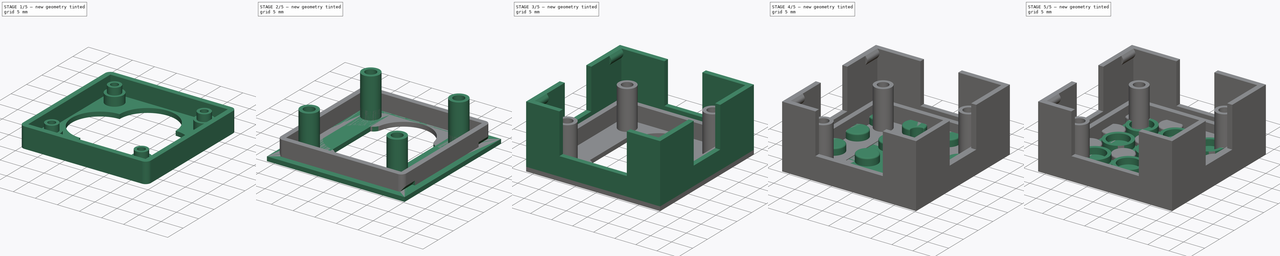
[diagram: build sequence overview — one tinted view per stage of 5, left to right]
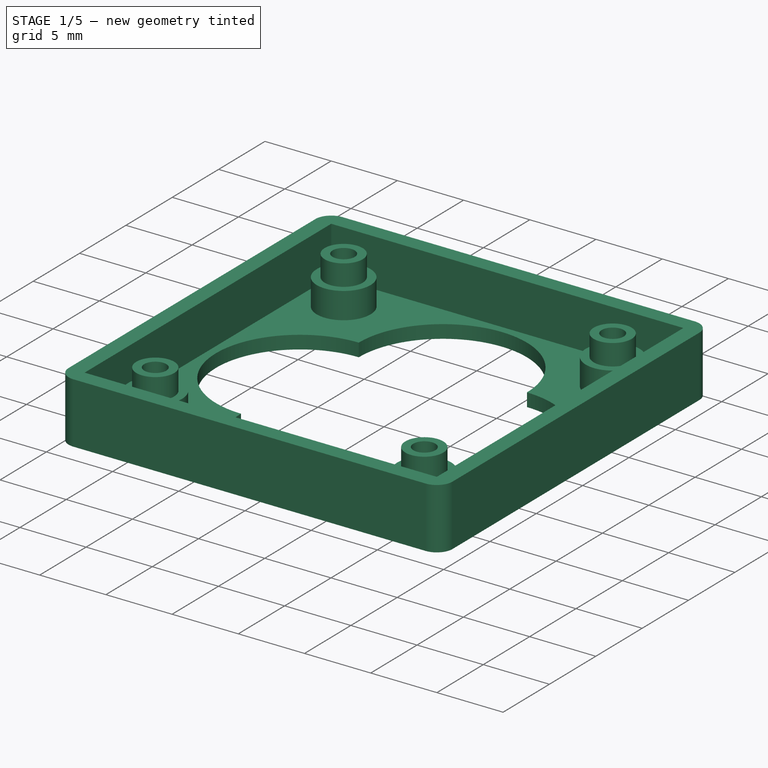
[diagram: stage 1 of 5 — iso view after this stage's code; geometry added in this stage tinted green]
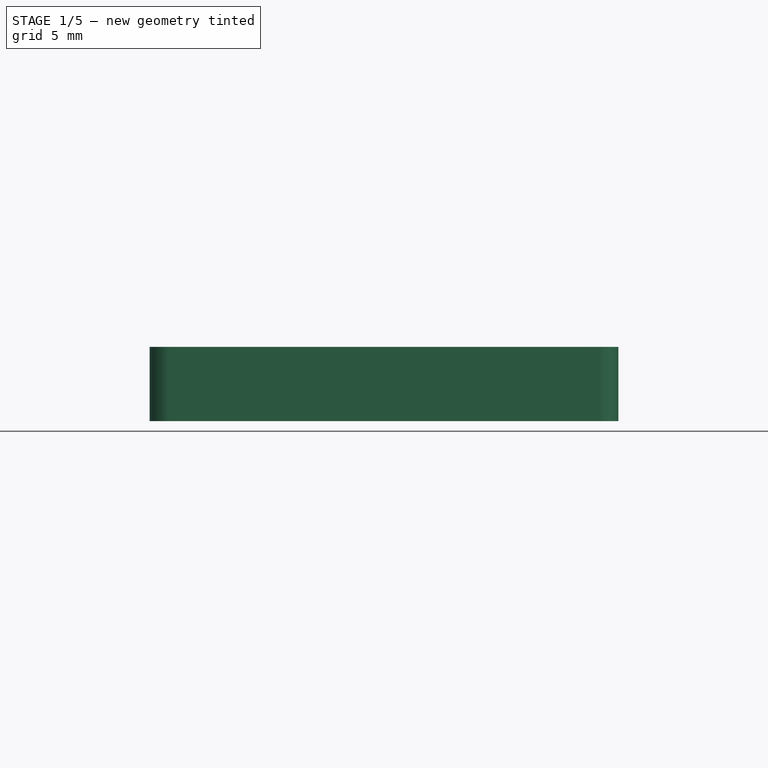
[diagram: stage 1 of 5 — front view after this stage's code; geometry added in this stage tinted green]
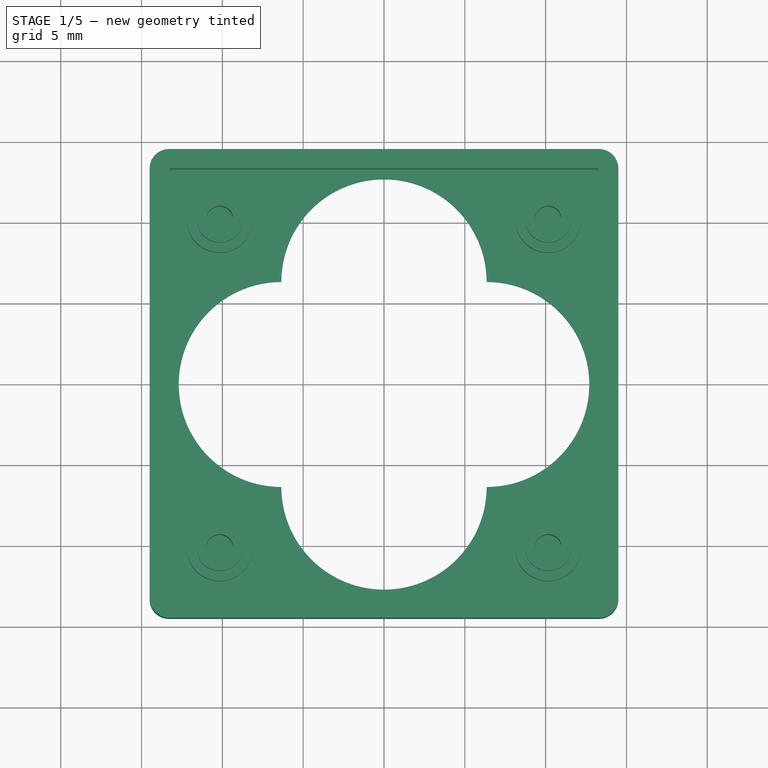
[diagram: stage 1 of 5 — top view after this stage's code; geometry added in this stage tinted green]
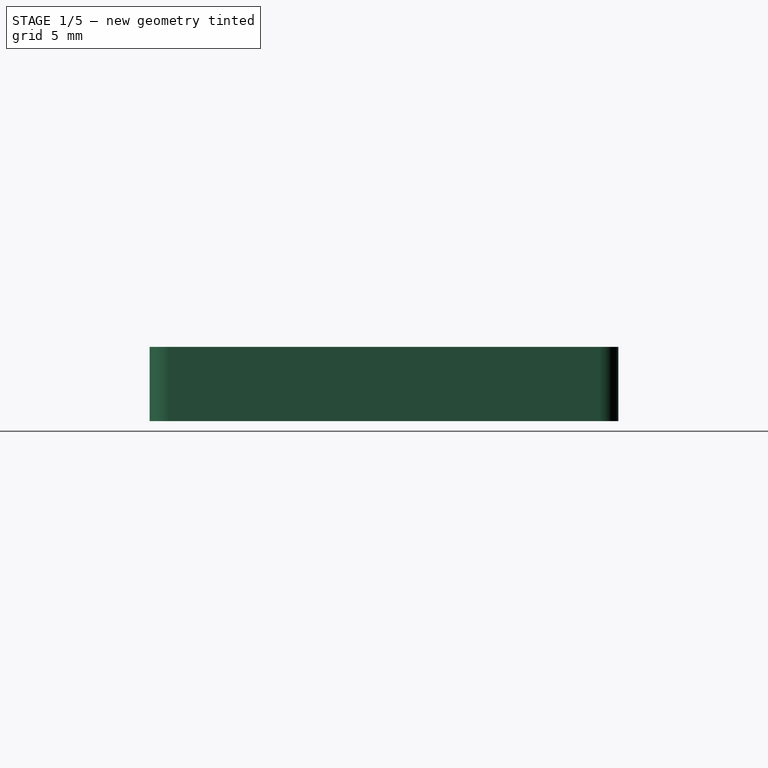
[diagram: stage 1 of 5 — right view after this stage's code; geometry added in this stage tinted green]
FCSTD DOCUMENT  (FreeCAD 0.18R4 (GitTag))
Label: Driver Case
License: All rights reserved
LicenseURL: http://en.wikipedia.org/wiki/All_rights_reserved
objects: Sketcher::SketchObject×21, PartDesign::Mirrored×13, PartDesign::Pad×12, PartDesign::Pocket×9, PartDesign::MultiTransform×8, PartDesign::Body×5, PartDesign::Fillet×5, PartDesign::LinearPattern×4, Part::Feature×2, App::Part×1, Spreadsheet::Sheet×1
note: 100 computed .brp shape members not serialized (recipe doc carries the construction recipe); baked Part::Feature solids carry a one-line shape summary decoded from their .brp

FEATURE [Sketcher::SketchObject] Sketch015
  MapMode = 5
  Support = -> [XY_Plane005]
  expr: Constraints[16] = val.bottom_len
  expr: Constraints[15] = val.case_thick
  sketch-geometry (8):
    g0: LineSegment StartX=-13.3 StartY=14.5 StartZ=0 EndX=13.3 EndY=14.5 EndZ=0
    g1: LineSegment StartX=14.5 StartY=13.3 StartZ=0 EndX=14.5 EndY=-13.3 EndZ=0
    g2: LineSegment StartX=13.3 StartY=-14.5 StartZ=0 EndX=-13.3 EndY=-14.5 EndZ=0
    g3: LineSegment StartX=-14.5 StartY=-13.3 StartZ=0 EndX=-14.5 EndY=13.3 EndZ=0
    g4: ArcOfCircle CenterX=-13.3 CenterY=13.3 CenterZ=0 NormalX=0 NormalY=0 NormalZ=1 AngleXU=0 Radius=1.2 StartAngle=1.5708 EndAngle=3.14159
    g5: ArcOfCircle CenterX=13.3 CenterY=13.3 CenterZ=0 NormalX=0 NormalY=0 NormalZ=1 AngleXU=0 Radius=1.2 StartAngle=-1.8e-15 EndAngle=1.5708
    g6: ArcOfCircle CenterX=-13.3 CenterY=-13.3 CenterZ=0 NormalX=0 NormalY=0 NormalZ=1 AngleXU=0 Radius=1.2 StartAngle=3.14159 EndAngle=4.71239
    g7: ArcOfCircle CenterX=13.3 CenterY=-13.3 CenterZ=0 NormalX=0 NormalY=0 NormalZ=1 AngleXU=0 Radius=1.2 StartAngle=4.71239 EndAngle=6.28319
  constraints (19):
    c: Horizontal(g0)
    c: Horizontal(g2)
    c: Vertical(g1)
    c: Vertical(g3)
    c: Equal(g0,g1)
    c: Tangent(g0,g4) = 1.5708
    c: Tangent(g3,g4) = 1.5708
    c: Tangent(g0,g5) = 1.5708
    c: Tangent(g1,g5) = 1.5708
    c: Tangent(g2,g6) = 1.5708
    c: Tangent(g3,g6) = 1.5708
    c: Tangent(g1,g7) = 1.5708
    c: Tangent(g2,g7) = 1.5708
    c: Equal(g4,g5)
    c: Equal(g7,g6)
    c: Radius(g4) = 1.2
    c: DistanceX(g3,g1) = 29
    c: Equal(g5,g7)
    c: Symmetric(g2,g0,g-1)
FEATURE [PartDesign::Pad] Pad011  label="Block"
  Length = 4.6
  Length2 = 100
  Profile = -> Sketch015
  Type = 0
  expr: Length = val.bottom_plate + val.bottom_distance + val.bottom_pcb
FEATURE [Sketcher::SketchObject] Sketch016
  ExternalGeometry = -> [Pad011]
  MapMode = 5
  Placement = pos=(0,0,4.6) rot=(0,0,1;0rad)
  Support = -> [Pad011]
  expr: Constraints[10] = val.case_thick
  sketch-geometry (4):
    g0: LineSegment StartX=-13.3 StartY=13.3 StartZ=0 EndX=13.3 EndY=13.3 EndZ=0
    g1: LineSegment StartX=13.3 StartY=13.3 StartZ=0 EndX=13.3 EndY=-13.3 EndZ=0
    g2: LineSegment StartX=13.3 StartY=-13.3 StartZ=0 EndX=-13.3 EndY=-13.3 EndZ=0
    g3: LineSegment StartX=-13.3 StartY=-13.3 StartZ=0 EndX=-13.3 EndY=13.3 EndZ=0
  constraints (11):
    c: Coincident(g0,g1)
    c: Coincident(g1,g2)
    c: Coincident(g2,g3)
    c: Coincident(g3,g0)
    c: Horizontal(g0)
    c: Horizontal(g2)
    c: Vertical(g1)
    c: Vertical(g3)
    c: Symmetric(g2,g0,g-1)
    c: Equal(g0,g1)
    c: DistanceX(g-3,g0) = 1.2
FEATURE [PartDesign::Pocket] Pocket005
  BaseFeature = -> Pad011
  Length = 3.6
  Length2 = 100
  Profile = -> Sketch016
  Type = 0
  expr: Length = val.bottom_pcb + val.bottom_distance
FEATURE [Sketcher::SketchObject] Sketch018
  MapMode = 5
  Placement = pos=(0,0,1) rot=(0,0,1;0rad)
  expr: Constraints[3] = 0.08in - 1.2mm
  expr: Constraints[2] = 0.4in
  expr: Constraints[1] = 0.4in
  expr: Constraints[0] = 0.08in
  sketch-geometry (2):
    g0: Circle CenterX=10.16 CenterY=10.16 CenterZ=0 NormalX=0 NormalY=0 NormalZ=1 AngleXU=0 Radius=2.032
    g1: Circle CenterX=10.16 CenterY=10.16 CenterZ=0 NormalX=0 NormalY=0 NormalZ=1 AngleXU=0 Radius=0.832
  constraints (5):
    c: Radius(g0) = 2.032
    c: DistanceX(g0) = 10.16
    c: DistanceY(g0) = 10.16
    c: Radius(g1) = 0.832
    c: Coincident(g0,g1)
FEATURE [PartDesign::Pad] Pad012  label="Distance"
  BaseFeature = -> Pocket005
  Length = 2
  Length2 = 100
  Profile = -> Sketch018
  Type = 0
  expr: Length = val.bottom_distance
FEATURE [PartDesign::Mirrored] Mirrored013
  MirrorPlane = -> Sketch018 [V_Axis]
FEATURE [PartDesign::Mirrored] Mirrored014
  MirrorPlane = -> Sketch018 [H_Axis]
FEATURE [PartDesign::MultiTransform] MultiTransform008  label="Multi Distance"
  BaseFeature = -> Pad012
  Originals = -> [Pad012]
  Transformations = -> [Mirrored013,Mirrored014]
FEATURE [PartDesign::Body] Body003  label="Noppen"
  Group = -> [Sketch012,Pad009,Sketch013,Pad010,MultiTransform005,LinearPattern,LinearPattern001,Fillet,Sketch014,Pocket003,Fillet009,Fillet010]
  Origin = -> Origin004
  Placement = pos=(0,0,15.15) rot=(0,0,1;0rad)
  Tip = -> Fillet010
FEATURE [PartDesign::Mirrored] Mirrored022
  MirrorPlane = -> XZ_Plane005
FEATURE [Sketcher::SketchObject] Sketch
  ExternalGeometry = -> [MultiTransform008]
  MapMode = 5
  Placement = pos=(0,0,3) rot=(0,0,1;0rad)
  Support = -> [MultiTransform008]
  expr: Constraints[0] = 0.08in - 0.6mm
  sketch-geometry (2):
    g0: Circle CenterX=10.16 CenterY=10.16 CenterZ=0 NormalX=0 NormalY=0 NormalZ=1 AngleXU=0 Radius=0.832
    g1: Circle CenterX=10.16 CenterY=10.16 CenterZ=0 NormalX=0 NormalY=0 NormalZ=1 AngleXU=0 Radius=1.432
  constraints (4):
    c: Radius(g1) = 1.432
    c: Coincident(g0,g1)
    c: Coincident(g0,g-4)
    c: Equal(g0,g-4)
FEATURE [PartDesign::Pad] Pad  label="Position"
  BaseFeature = -> MultiTransform008
  Length = 1.6
  Length2 = 100
  Profile = -> Sketch
  Type = 0
  expr: Length = val.bottom_pcb
FEATURE [PartDesign::Mirrored] Mirrored023
  MirrorPlane = -> Sketch [V_Axis]
FEATURE [PartDesign::Mirrored] Mirrored024
  MirrorPlane = -> Sketch [H_Axis]
FEATURE [PartDesign::MultiTransform] MultiTransform011  label="Multi Position"
  BaseFeature = -> Pad
  Originals = -> [Pad]
  Transformations = -> [Mirrored023,Mirrored024]
FEATURE [PartDesign::Pocket] Pocket007  label="Boden Aussparung"
  BaseFeature = -> MultiTransform011
  Length = 5
  Length2 = 100
  Profile = -> Sketch020
  Type = 1
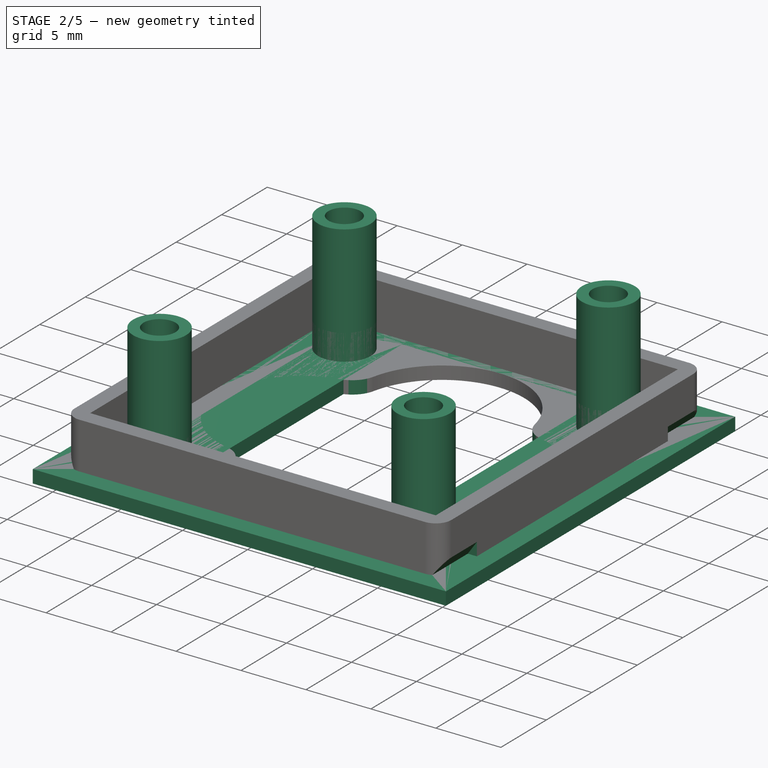
[diagram: stage 2 of 5 — iso view after this stage's code; geometry added in this stage tinted green]
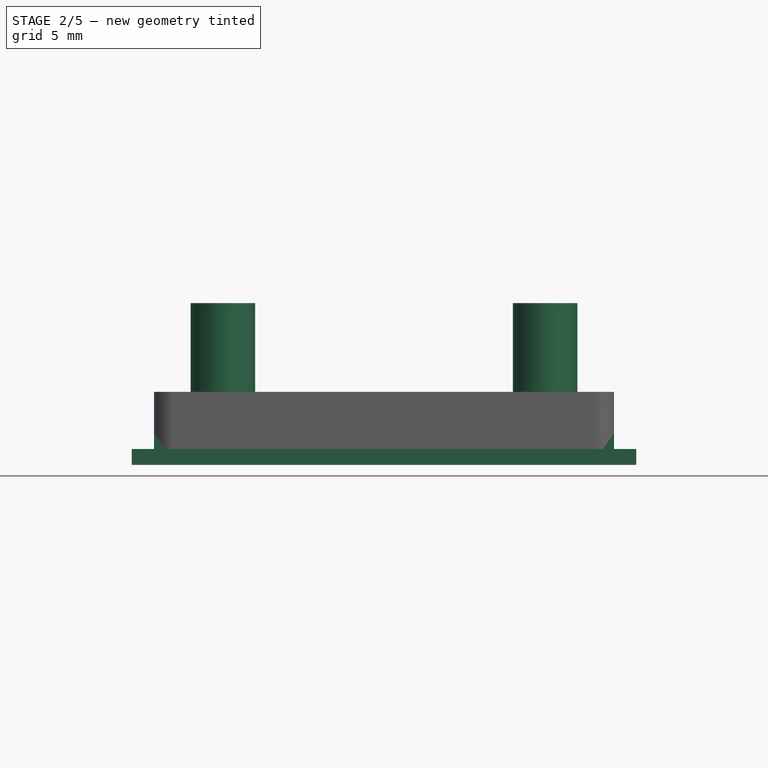
[diagram: stage 2 of 5 — front view after this stage's code; geometry added in this stage tinted green]
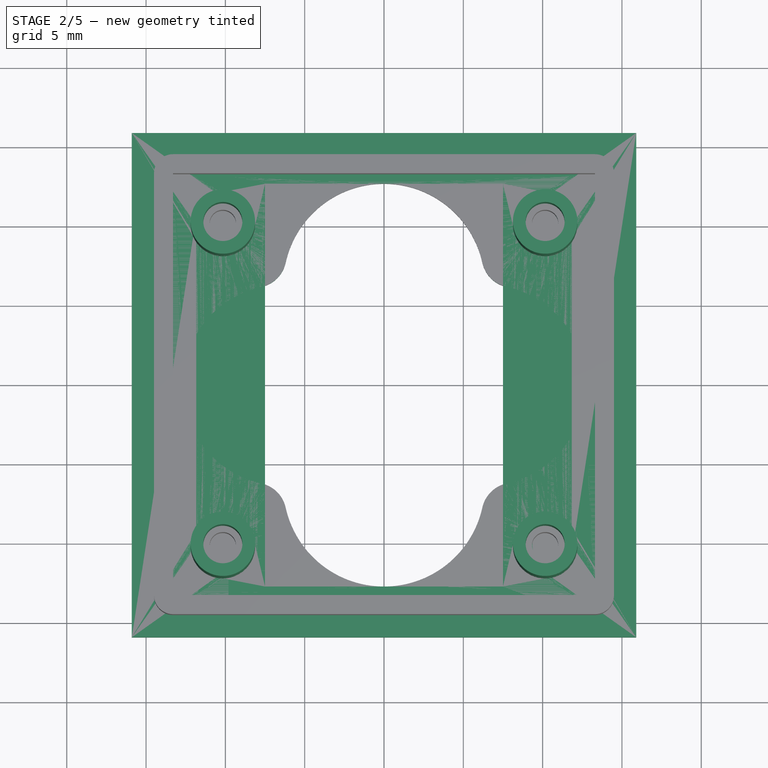
[diagram: stage 2 of 5 — top view after this stage's code; geometry added in this stage tinted green]
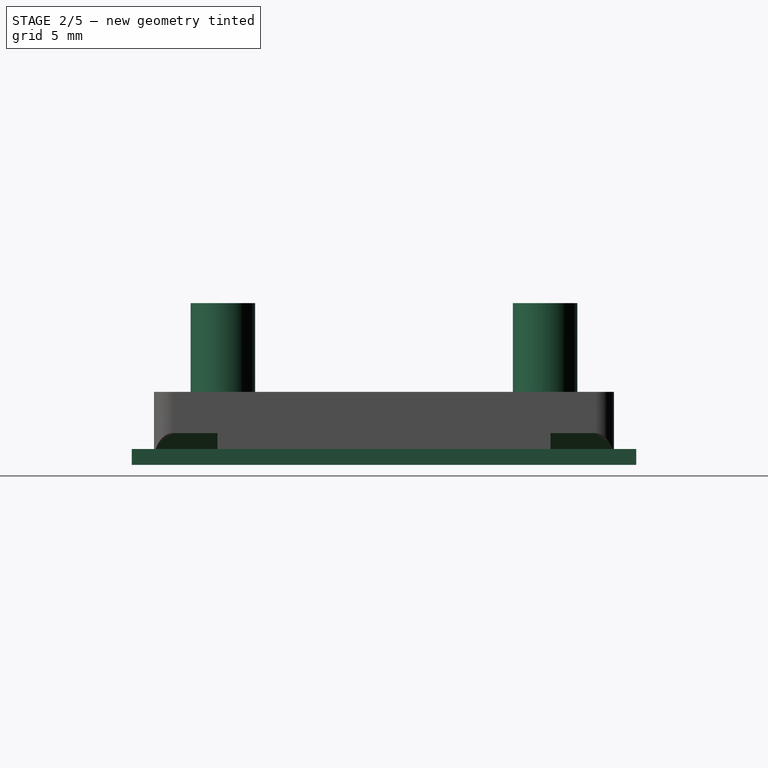
[diagram: stage 2 of 5 — right view after this stage's code; geometry added in this stage tinted green]
FEATURE [PartDesign::Body] Body001  label="PCB"
  Group = -> [Sketch006,Pad005,Sketch005,Pocket,MultiTransform002,Mirrored006,Mirrored007]
  Origin = -> Origin002
  Tip = -> MultiTransform002
FEATURE [App::Part] Part  label="Driver"
  Group = -> [Body001,Part__Feature,Part__Feature001]
  Origin = -> Origin001
  Placement = pos=(0,0,3) rot=(0,0,1;0rad)
FEATURE [Sketcher::SketchObject] Sketch007
  MapMode = 5
  Support = -> [XY_Plane003]
  sketch-geometry (4):
    g0: LineSegment StartX=-15.9 StartY=15.9 StartZ=0 EndX=15.9 EndY=15.9 EndZ=0
    g1: LineSegment StartX=15.9 StartY=15.9 StartZ=0 EndX=15.9 EndY=-15.9 EndZ=0
    g2: LineSegment StartX=15.9 StartY=-15.9 StartZ=0 EndX=-15.9 EndY=-15.9 EndZ=0
    g3: LineSegment StartX=-15.9 StartY=-15.9 StartZ=0 EndX=-15.9 EndY=15.9 EndZ=0
  constraints (11):
    c: Coincident(g0,g1)
    c: Coincident(g1,g2)
    c: Coincident(g2,g3)
    c: Coincident(g3,g0)
    c: Horizontal(g0)
    c: Horizontal(g2)
    c: Vertical(g1)
    c: Vertical(g3)
    c: DistanceX(g0,g0) = 31.8
    c: DistanceY(g1,g1) = 31.8
    c: Symmetric(g2,g0,g-1)
FEATURE [PartDesign::Pad] Pad006  label="Platte001"
  Length = 1
  Length2 = 100
  Profile = -> Sketch007
  Type = 0
FEATURE [Spreadsheet::Sheet] Spreadsheet  label="val"
  cells = A1=Grundfläche; A2=Lego Einheiten; B2(lego_side_units)=4; A3=Case Seitenlänge; B3(case_len)==lego_side_units * 8mm - 0.2mm; A4=Bottom Seitenlänge; B4(bottom_len)==case_len - 2 * case_thick - 2 * 0.2mm; A6=Aussparungen; D6=Lego Standard Dimensions; A7=Vin Block; B7(vin_width)==2 * 3.5mm + 2mm; D7=Plate Play; E7(lego_play)==0.1mm; A8=Motor Block; B8(motor_width)==4 * 3.5mm + 2mm; D8=Plate Height; E8(lego_plate_heigth)==3.2mm; A9=Qwiic; B9(connector_width)==5mm + 4mm; D9=Knob Diameter; E9(knob_dia)==4.9mm; D10=Knob Height; E10(knob_height)==1.8mm; A11=Höhe; D11=Pocket Depth; E11(pocket_depth)==2.2mm; A12=Lego Blöcke; B12(lego_count)=2; D12=Wall Thickness; E12(wall_thick)==1.5mm; A13=Lego Höhe; B13(lego_height)==lego_count * 9.6mm; D13=Tube Inner Diameter; E13(tube_inner_dia)==4.9mm; D14=Tube Outer Diameter; E14(tube_outer_dia)==6.5mm; A15=Basis; B15(base_height)==3.2mm; A16=Case; B16(bottom_height)==lego_height - base_height - top_height - knobs_height; A17=Case Platte; B17(bottom_plate)==1mm; A18=Case Abstand; B18(bottom_distance)==2mm; A19=Case Leiterplatte; B19(bottom_pcb)==1.6mm; A20=Case Seitenwand; B20(bottom_side)==bottom_height - bottom_plate - bottom_distance - bottom_pcb; A21=Deckel; B21(top_height)==1mm; A22=Noppen; B22(knobs_height)==1mm; A23=Wandstärke; B23(case_thick)==1.2mm
FEATURE [Sketcher::SketchObject] Sketch009
  MapMode = 5
  Placement = pos=(0,0,1) rot=(0,0,1;0rad)
  expr: Constraints[7] = 15
  sketch-geometry (4):
    g0: LineSegment StartX=-7.5 StartY=12.7 StartZ=0 EndX=7.5 EndY=12.7 EndZ=0
    g1: LineSegment StartX=7.5 StartY=12.7 StartZ=0 EndX=7.5 EndY=-12.7 EndZ=0
    g2: LineSegment StartX=7.5 StartY=-12.7 StartZ=0 EndX=-7.5 EndY=-12.7 EndZ=0
    g3: LineSegment StartX=-7.5 StartY=-12.7 StartZ=0 EndX=-7.5 EndY=12.7 EndZ=0
  constraints (11):
    c: Coincident(g0,g1)
    c: Coincident(g1,g2)
    c: Coincident(g2,g3)
    c: Coincident(g3,g0)
    c: Horizontal(g2)
    c: Vertical(g1)
    c: Vertical(g3)
    c: DistanceX(g0,g0) = 15
    c: DistanceY(g3,g3) = 25.4
    c: Symmetric(g2,g0,g-1)
    c: Horizontal(g0)
FEATURE [PartDesign::Pocket] Pocket001  label="Terminal Schraubenzugang"
  BaseFeature = -> Pad006
  Length = 5
  Length2 = 100
  Profile = -> Sketch009
  Type = 1
FEATURE [Sketcher::SketchObject] Sketch010
  MapMode = 5
  Placement = pos=(0,0,1) rot=(0,0,1;0rad)
  Support = -> [Pocket001]
  expr: Constraints[4] = 0.08in - 0.8mm
  expr: Constraints[2] = 0.4 * 25.4
  expr: Constraints[1] = 0.4 * 25.4
  expr: Constraints[0] = 0.08in
  sketch-geometry (2):
    g0: Circle CenterX=10.16 CenterY=10.16 CenterZ=0 NormalX=0 NormalY=0 NormalZ=1 AngleXU=0 Radius=2.032
    g1: Circle CenterX=10.16 CenterY=10.16 CenterZ=0 NormalX=0 NormalY=0 NormalZ=1 AngleXU=0 Radius=1.232
  constraints (5):
    c: Radius(g0) = 2.032
    c: DistanceY(g0) = 10.16
    c: DistanceX(g0) = 10.16
    c: Coincident(g0,g1)
    c: Radius(g1) = 1.232
FEATURE [PartDesign::Pad] Pad008  label="Halter"
  BaseFeature = -> Pocket001
  Length = 9.2
  Length2 = 100
  Profile = -> Sketch010
  Type = 0
  expr: Length = val.bottom_side - 0.2mm
FEATURE [PartDesign::Mirrored] Mirrored009
  MirrorPlane = -> Sketch010 [V_Axis]
FEATURE [PartDesign::Mirrored] Mirrored010
  MirrorPlane = -> Sketch010 [H_Axis]
FEATURE [PartDesign::MultiTransform] MultiTransform006
  BaseFeature = -> Pad008
  Originals = -> [Pad008]
  Transformations = -> [Mirrored009,Mirrored010]
FEATURE [Sketcher::SketchObject] Sketch026
  ExternalGeometry = -> [Pocket007]
  MapMode = 5
  Placement = pos=(0,-14.5,0) rot=(1,0,0;1.5708rad)
  Support = -> [Pocket007]
  sketch-geometry (3):
    g0: LineSegment StartX=14.5 StartY=4e-16 StartZ=0 EndX=13.7998 EndY=1 EndZ=0
    g1: LineSegment StartX=13.7998 StartY=1 StartZ=0 EndX=14.5 EndY=2 EndZ=0
    g2: LineSegment StartX=14.5 StartY=2 StartZ=0 EndX=14.5 EndY=4e-16 EndZ=0
  constraints (8):
    c: Coincident(g0,g1)
    c: Coincident(g1,g2)
    c: Vertical(g2)
    c: Equal(g1,g0)
    c: Angle(g2,g0) = 0.610865
    c: DistanceY(g2,g2) = 2
    c: Coincident(g0,g-3)
    c: Coincident(g2,g0)
FEATURE [PartDesign::Pocket] Pocket009  label="Snap Pocket"
  BaseFeature = -> Pocket007
  Length = 4
  Length2 = 100
  Profile = -> Sketch026
  Type = 0
FEATURE [PartDesign::Mirrored] Mirrored
  MirrorPlane = -> Sketch026 [V_Axis]
FEATURE [PartDesign::MultiTransform] MultiTransform  label="Multi Snap Pocket"
  BaseFeature = -> Pocket009
  Originals = -> [Pocket009]
  Transformations = -> [Mirrored,Mirrored022]
FEATURE [PartDesign::Body] Body002  label="Cover"
  Group = -> [Sketch007,Pad006,Pocket001,Sketch009,Sketch010,Pad008,MultiTransform006,Mirrored009,Mirrored010,Sketch027,Pad016,Sketch028,Pad017,MultiTransform012,Mirrored025,Mirrored026,Sketch029,Pocket010,Sketch030,Pocket011,Mirrored027,Fillet013]
  Origin = -> Origin003
  Placement = pos=(1e-15,0,15) rot=(0,1,0;3.14159rad)
  Tip = -> Fillet013
FEATURE [PartDesign::Fillet] Fillet014
  Base = -> MultiTransform [Edge63,Edge58,Edge61,Edge59]
  BaseFeature = -> MultiTransform
  Radius = 2
FEATURE [PartDesign::Body] Body004  label="Bottom"
  Group = -> [Sketch015,Pad011,Sketch016,Pocket005,Sketch018,Pad012,MultiTransform008,Pad,MultiTransform011,Mirrored013,Mirrored014,Sketch020,Pocket007,Sketch026,Pocket009,MultiTransform,Mirrored,Mirrored022,Sketch,Mirrored023,Mirrored024,Fillet014]
  Origin = -> Origin005
  Tip = -> Fillet014
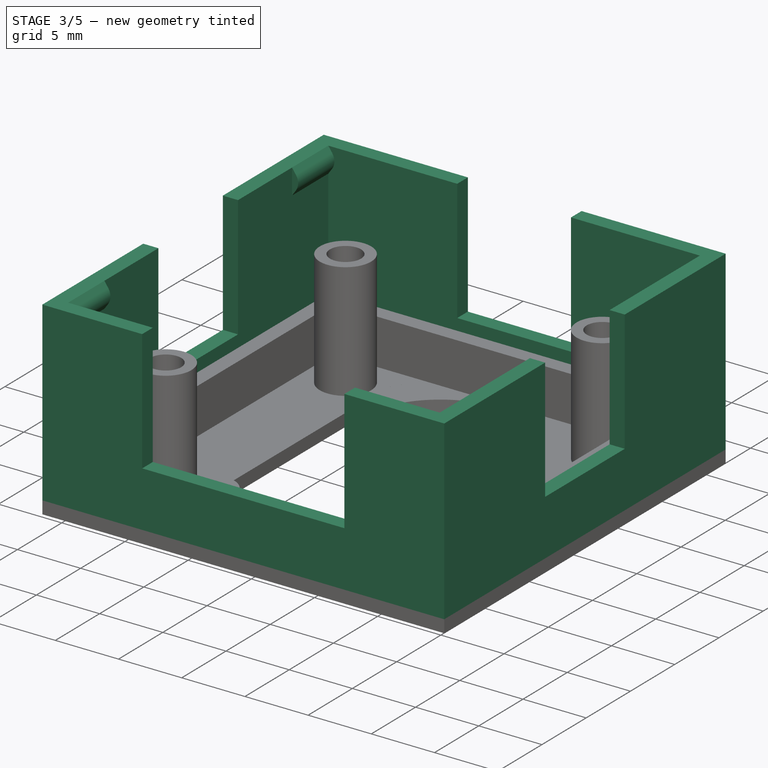
[diagram: stage 3 of 5 — iso view after this stage's code; geometry added in this stage tinted green]
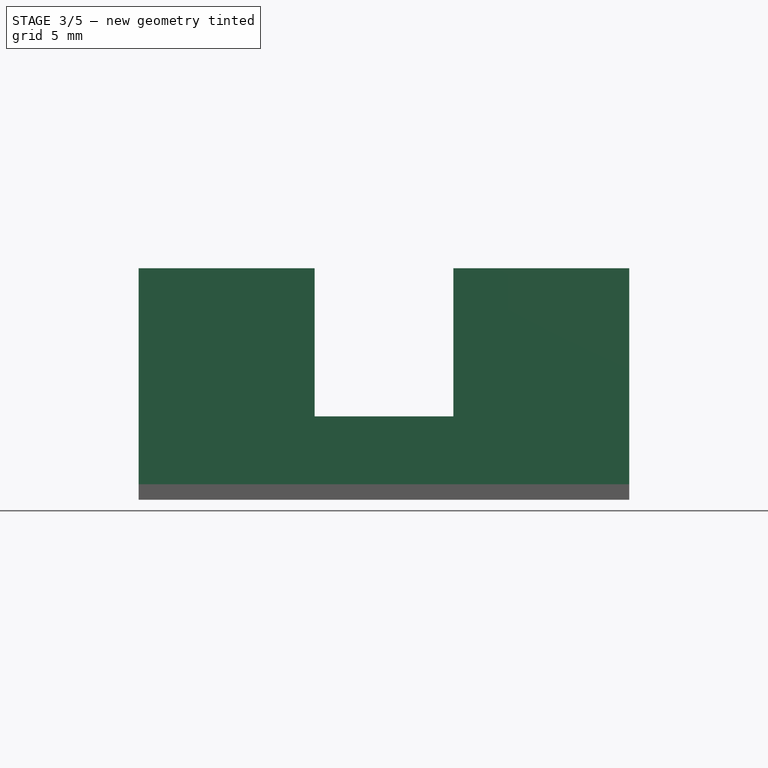
[diagram: stage 3 of 5 — front view after this stage's code; geometry added in this stage tinted green]
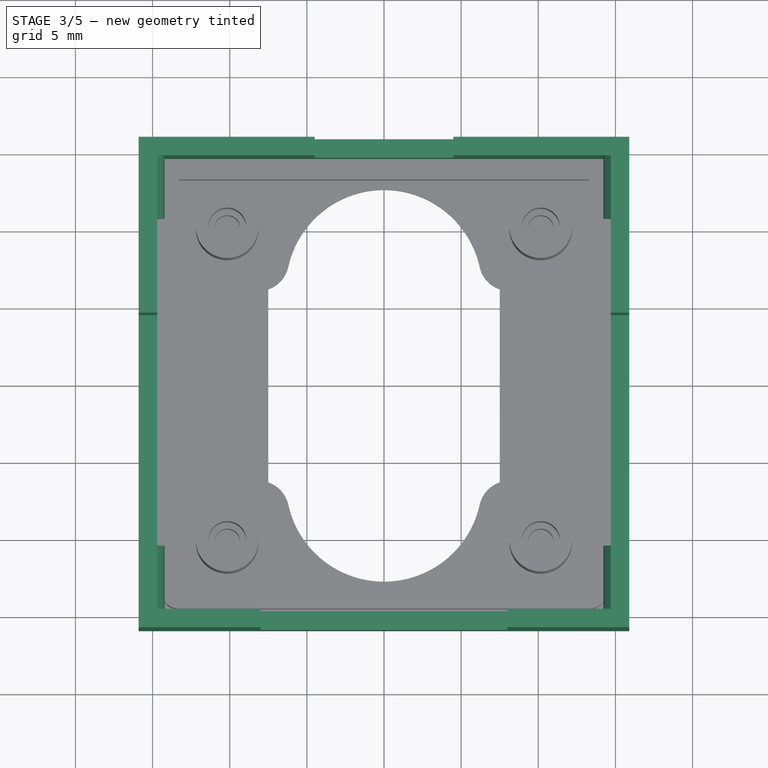
[diagram: stage 3 of 5 — top view after this stage's code; geometry added in this stage tinted green]
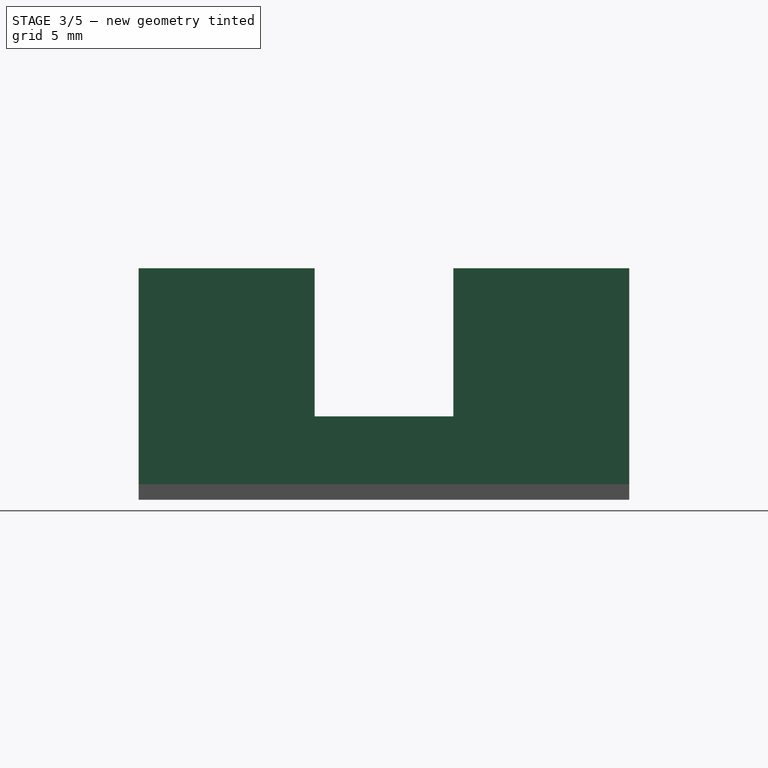
[diagram: stage 3 of 5 — right view after this stage's code; geometry added in this stage tinted green]
FEATURE [Sketcher::SketchObject] Sketch027
  ExternalGeometry = -> [MultiTransform006]
  MapMode = 5
  Placement = pos=(0,0,1) rot=(0,0,1;0rad)
  Support = -> [MultiTransform006]
  expr: Constraints[20] = val.case_thick
  sketch-geometry (8):
    g0: LineSegment StartX=-14.7 StartY=14.7 StartZ=0 EndX=14.7 EndY=14.7 EndZ=0
    g1: LineSegment StartX=14.7 StartY=14.7 StartZ=0 EndX=14.7 EndY=-14.7 EndZ=0
    g2: LineSegment StartX=14.7 StartY=-14.7 StartZ=0 EndX=-14.7 EndY=-14.7 EndZ=0
    g3: LineSegment StartX=-14.7 StartY=-14.7 StartZ=0 EndX=-14.7 EndY=14.7 EndZ=0
    g4: LineSegment StartX=-15.9 StartY=15.9 StartZ=0 EndX=15.9 EndY=15.9 EndZ=0
    g5: LineSegment StartX=15.9 StartY=15.9 StartZ=0 EndX=15.9 EndY=-15.9 EndZ=0
    g6: LineSegment StartX=15.9 StartY=-15.9 StartZ=0 EndX=-15.9 EndY=-15.9 EndZ=0
    g7: LineSegment StartX=-15.9 StartY=-15.9 StartZ=0 EndX=-15.9 EndY=15.9 EndZ=0
  constraints (21):
    c: Coincident(g0,g1)
    c: Coincident(g1,g2)
    c: Coincident(g2,g3)
    c: Coincident(g3,g0)
    c: Horizontal(g0)
    c: Horizontal(g2)
    c: Vertical(g1)
    c: Vertical(g3)
    c: Coincident(g4,g5)
    c: Coincident(g5,g6)
    c: Coincident(g6,g7)
    c: Coincident(g7,g4)
    c: Horizontal(g4)
    c: Horizontal(g6)
    c: Vertical(g7)
    c: Coincident(g4,g-3)
    c: Symmetric(g4,g5,g-1)
    c: Symmetric(g0,g1,g-1)
    c: Equal(g0,g1)
    c: Equal(g4,g5)
    c: DistanceX(g4,g0) = 1.2
FEATURE [PartDesign::Pad] Pad016  label="Seitenwand"
  BaseFeature = -> MultiTransform006
  Length = 14
  Length2 = 100
  Profile = -> Sketch027
  Type = 0
  expr: Length = val.bottom_height
FEATURE [Sketcher::SketchObject] Sketch028
  ExternalGeometry = -> [Pad016]
  MapMode = 5
  Placement = pos=(0,-15.9,0) rot=(1,0,0;1.5708rad)
  Support = -> [Pad016]
  expr: Constraints[4] = val.case_thick
  sketch-geometry (5):
    g0: LineSegment StartX=-14.7 StartY=13 StartZ=0 EndX=-14.7 EndY=15 EndZ=0
    g1: LineSegment [constr] StartX=-14.7 StartY=15 StartZ=0 EndX=-15.9 EndY=15 EndZ=0
    g2: LineSegment StartX=-14.7 StartY=15 StartZ=0 EndX=-14.4014 EndY=14.5736 EndZ=0
    g3: ArcOfCircle CenterX=-15.2206 CenterY=14 CenterZ=0 NormalX=0 NormalY=0 NormalZ=1 AngleXU=0 Radius=1 StartAngle=5.67232 EndAngle=6.89405
    g4: LineSegment StartX=-14.4014 StartY=13.4264 StartZ=0 EndX=-14.7 EndY=13 EndZ=0
  constraints (13):
    c: Horizontal(g1)
    c: Coincident(g1,g-3)
    c: Vertical(g0)
    c: DistanceY(g0,g0) = 2
    c: DistanceX(g1,g1) = 1.2
    c: Tangent(g2,g3) = 1.5708
    c: Tangent(g3,g4) = 1.5708
    c: Coincident(g4,g0)
    c: Coincident(g0,g2)
    c: Coincident(g0,g1)
    c: Equal(g2,g4)
    c: Angle(g0,g2) = 0.610865
    c: Radius(g3) = 1
FEATURE [PartDesign::Pad] Pad017  label="Snap"
  BaseFeature = -> Pad016
  Length = 5.3
  Length2 = 100
  Profile = -> Sketch028
  Reversed = true
  Type = 0
  expr: Length = val.wall_thick + 3.8mm
FEATURE [PartDesign::Mirrored] Mirrored025
  MirrorPlane = -> Sketch028 [V_Axis]
FEATURE [PartDesign::Mirrored] Mirrored026
  MirrorPlane = -> XZ_Plane003
FEATURE [PartDesign::MultiTransform] MultiTransform012
  BaseFeature = -> Pad017
  Originals = -> [Pad017]
  Transformations = -> [Mirrored025,Mirrored026]
FEATURE [Sketcher::SketchObject] Sketch029
  ExternalGeometry = -> [MultiTransform012]
  MapMode = 5
  Placement = pos=(0,0,15) rot=(0,0,1;0rad)
  Support = -> [MultiTransform012]
  expr: Constraints[20] = val.motor_width
  expr: Constraints[19] = val.wall_thick
  expr: Constraints[10] = val.vin_width
  expr: Constraints[9] = val.wall_thick
  sketch-geometry (8):
    g0: LineSegment StartX=-4.5 StartY=15.9 StartZ=0 EndX=4.5 EndY=15.9 EndZ=0
    g1: LineSegment StartX=4.5 StartY=15.9 StartZ=0 EndX=4.5 EndY=14.4 EndZ=0
    g2: LineSegment StartX=4.5 StartY=14.4 StartZ=0 EndX=-4.5 EndY=14.4 EndZ=0
    g3: LineSegment StartX=-4.5 StartY=14.4 StartZ=0 EndX=-4.5 EndY=15.9 EndZ=0
    g4: LineSegment StartX=-8 StartY=-14.4 StartZ=0 EndX=8 EndY=-14.4 EndZ=0
    g5: LineSegment StartX=8 StartY=-14.4 StartZ=0 EndX=8 EndY=-15.9 EndZ=0
    g6: LineSegment StartX=8 StartY=-15.9 StartZ=0 EndX=-8 EndY=-15.9 EndZ=0
    g7: LineSegment StartX=-8 StartY=-15.9 StartZ=0 EndX=-8 EndY=-14.4 EndZ=0
  constraints (22):
    c: Coincident(g0,g1)
    c: Coincident(g1,g2)
    c: Coincident(g2,g3)
    c: Coincident(g3,g0)
    c: Horizontal(g2)
    c: Vertical(g1)
    c: Vertical(g3)
    c: PointOnObject(g0,g-3)
    c: Symmetric(g0,g0,g-2)
    c: DistanceY(g1,g1) = 1.5
    c: DistanceX(g2,g2) = 9
    c: Coincident(g4,g5)
    c: Coincident(g5,g6)
    c: Coincident(g6,g7)
    c: Coincident(g7,g4)
    c: Vertical(g5)
    c: Vertical(g7)
    c: PointOnObject(g5,g-4)
    c: Symmetric(g6,g5,g-2)
    c: DistanceY(g7,g7) = 1.5
    c: DistanceX(g4,g4) = 16
    c: Horizontal(g4)
FEATURE [PartDesign::Pocket] Pocket010  label="Terminal Aussparung"
  BaseFeature = -> MultiTransform012
  Length = 9.6
  Length2 = 100
  Profile = -> Sketch029
  Type = 0
  expr: Length = val.bottom_plate + val.bottom_distance + val.bottom_pcb + 5mm
FEATURE [Sketcher::SketchObject] Sketch030
  ExternalGeometry = -> [Pocket010]
  MapMode = 5
  Placement = pos=(0,0,15) rot=(0,0,1;0rad)
  Support = -> [Pocket010]
  expr: Constraints[10] = val.connector_width
  expr: Constraints[9] = val.wall_thick
  sketch-geometry (4):
    g0: LineSegment StartX=14.4 StartY=4.5 StartZ=0 EndX=15.9 EndY=4.5 EndZ=0
    g1: LineSegment StartX=15.9 StartY=4.5 StartZ=0 EndX=15.9 EndY=-4.5 EndZ=0
    g2: LineSegment StartX=15.9 StartY=-4.5 StartZ=0 EndX=14.4 EndY=-4.5 EndZ=0
    g3: LineSegment StartX=14.4 StartY=-4.5 StartZ=0 EndX=14.4 EndY=4.5 EndZ=0
  constraints (11):
    c: Coincident(g0,g1)
    c: Coincident(g1,g2)
    c: Coincident(g2,g3)
    c: Coincident(g3,g0)
    c: Horizontal(g0)
    c: Horizontal(g2)
    c: Vertical(g3)
    c: PointOnObject(g1,g-3)
    c: Symmetric(g0,g1,g-1)
    c: DistanceX(g0,g0) = 1.5
    c: DistanceY(g3,g3) = 9
FEATURE [PartDesign::Pocket] Pocket011  label="Qwiic Aussparung"
  BaseFeature = -> Pocket010
  Length = 9.6
  Length2 = 100
  Profile = -> Sketch030
  Type = 0
  expr: Length = val.bottom_plate + val.bottom_distance + val.bottom_pcb + 5mm
FEATURE [PartDesign::Mirrored] Mirrored027
  BaseFeature = -> Pocket011
  MirrorPlane = -> Sketch030 [V_Axis]
  Originals = -> [Pocket011]
FEATURE [PartDesign::Fillet] Fillet013
  Base = -> Mirrored027 [Edge48,Edge52,Edge47,Edge50]
  BaseFeature = -> Mirrored027
  Radius = 2
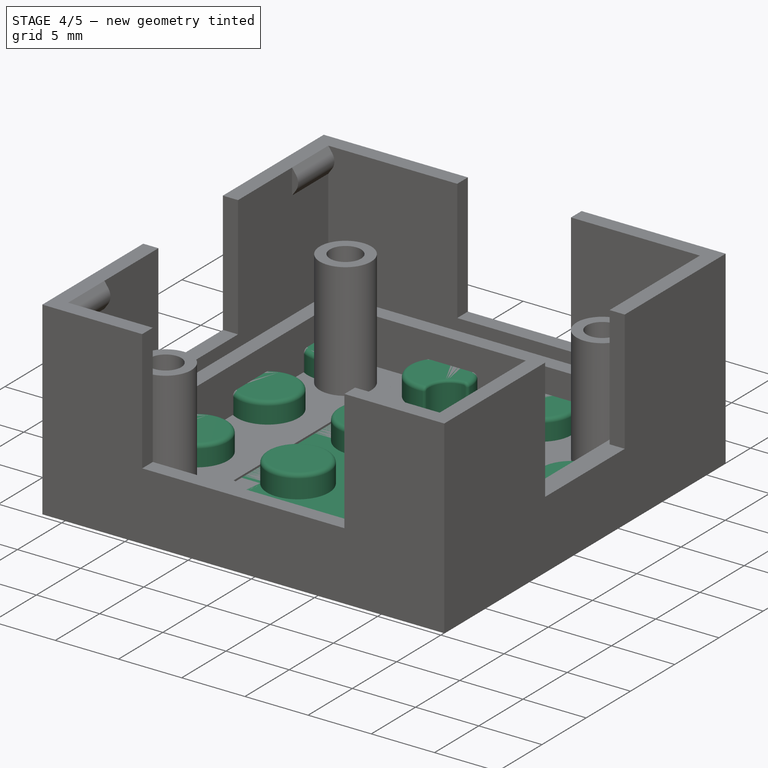
[diagram: stage 4 of 5 — iso view after this stage's code; geometry added in this stage tinted green]
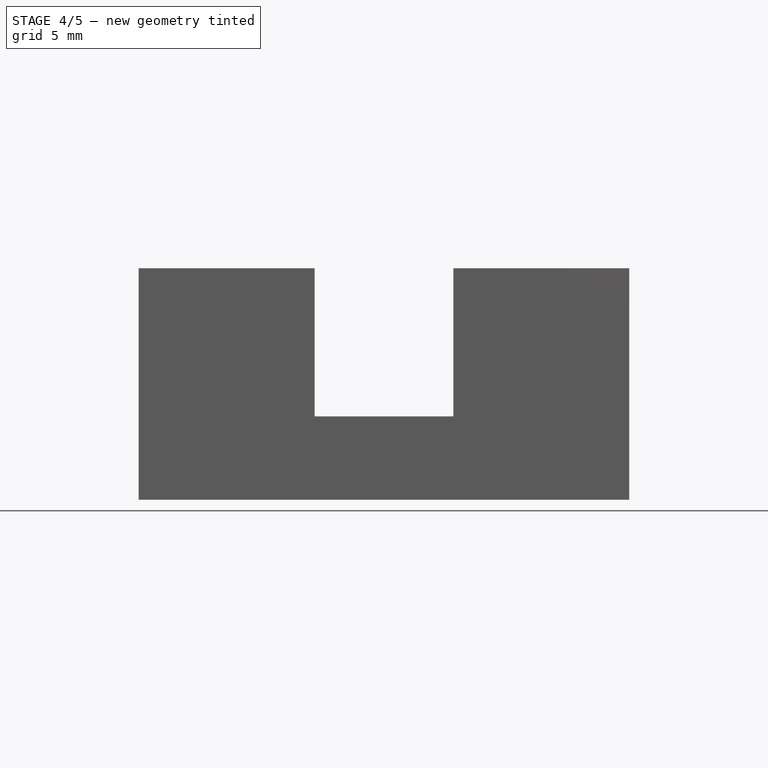
[diagram: stage 4 of 5 — front view after this stage's code; geometry added in this stage tinted green]
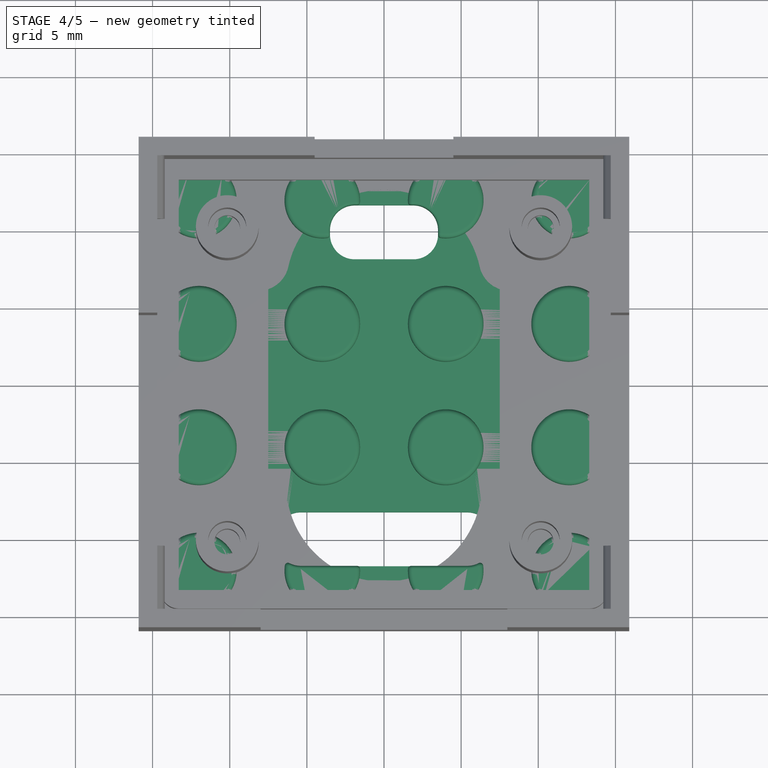
[diagram: stage 4 of 5 — top view after this stage's code; geometry added in this stage tinted green]
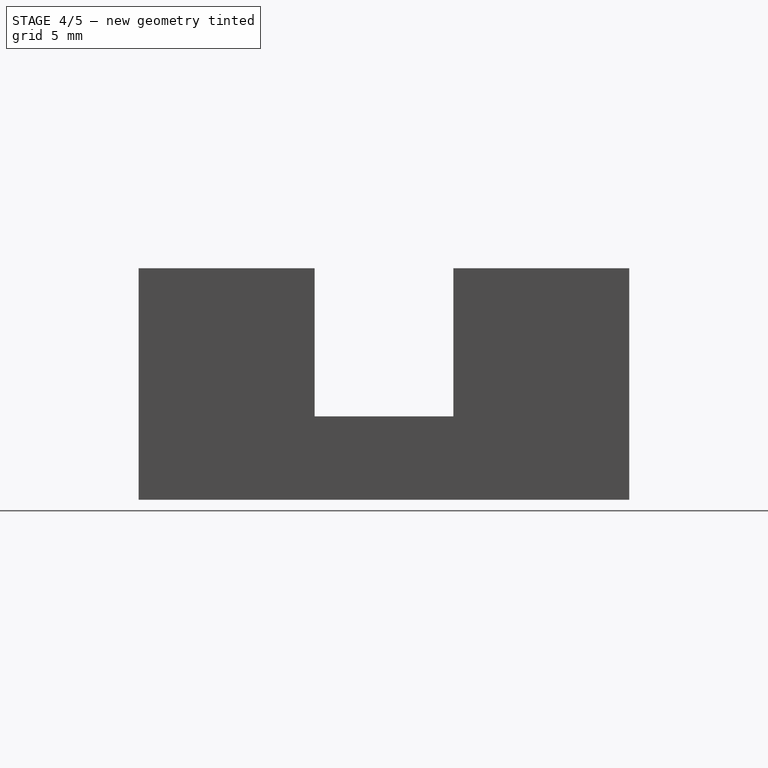
[diagram: stage 4 of 5 — right view after this stage's code; geometry added in this stage tinted green]
FEATURE [Sketcher::SketchObject] Sketch012
  MapMode = 5
  Support = -> [XY_Plane004]
  sketch-geometry (4):
    g0: LineSegment StartX=-15.9 StartY=15.9 StartZ=0 EndX=15.9 EndY=15.9 EndZ=0
    g1: LineSegment StartX=15.9 StartY=15.9 StartZ=0 EndX=15.9 EndY=-15.9 EndZ=0
    g2: LineSegment StartX=15.9 StartY=-15.9 StartZ=0 EndX=-15.9 EndY=-15.9 EndZ=0
    g3: LineSegment StartX=-15.9 StartY=-15.9 StartZ=0 EndX=-15.9 EndY=15.9 EndZ=0
  constraints (11):
    c: Coincident(g0,g1)
    c: Coincident(g1,g2)
    c: Coincident(g2,g3)
    c: Coincident(g3,g0)
    c: Horizontal(g0)
    c: Horizontal(g2)
    c: Vertical(g1)
    c: Vertical(g3)
    c: DistanceX(g0,g0) = 31.8
    c: DistanceY(g1,g1) = 31.8
    c: Symmetric(g0,g2,g-1)
FEATURE [PartDesign::Pad] Pad009  label="Platte002"
  Length = 0.85
  Length2 = 100
  Profile = -> Sketch012
  Type = 0
FEATURE [Sketcher::SketchObject] Sketch013
  MapMode = 5
  Placement = pos=(0,0,0.85) rot=(0,0,1;0rad)
  Support = -> [Pad009]
  expr: Constraints[0] = val.knob_dia / 2
  sketch-geometry (1):
    g0: Circle CenterX=12 CenterY=12 CenterZ=0 NormalX=0 NormalY=0 NormalZ=1 AngleXU=0 Radius=2.45
  constraints (3):
    c: Radius(g0) = 2.45
    c: DistanceX(g0) = 12
    c: DistanceY(g0) = 12
FEATURE [PartDesign::Pad] Pad010  label="Knob"
  BaseFeature = -> Pad009
  Length = 1.8
  Length2 = 100
  Profile = -> Sketch013
  Type = 0
  expr: Length = val.knob_height
FEATURE [PartDesign::LinearPattern] LinearPattern
  Direction = -> Sketch013 [H_Axis]
  Length = 24
  Occurrences = 4
  Reversed = true
FEATURE [PartDesign::LinearPattern] LinearPattern001
  Direction = -> Sketch013 [V_Axis]
  Length = 24
  Occurrences = 4
  Reversed = true
FEATURE [PartDesign::MultiTransform] MultiTransform005
  BaseFeature = -> Pad010
  Originals = -> [Pad010]
  Transformations = -> [LinearPattern,LinearPattern001]
FEATURE [PartDesign::Fillet] Fillet
  Base = -> MultiTransform005 [Face23,Face24,Face26,Face25,Face27,Face28,Face30,Face29,Face38,Face33,Face35,Face34,Face36,Face32,Face31,Face37]
  BaseFeature = -> MultiTransform005
  Radius = 0.32
FEATURE [Sketcher::SketchObject] Sketch014
  MapMode = 5
  Placement = pos=(0,0,2.65) rot=(0,0,1;0rad)
  Support = -> [Fillet]
  expr: Constraints[21] = 25.4 / 2 - 1
  expr: Constraints[20] = 25.4 / 2 - 1
  expr: Constraints[17] = 4 * 3.5
  expr: Constraints[16] = 2 * 3.5
  sketch-geometry (8):
    g0: LineSegment StartX=-3.5 StartY=11.7 StartZ=0 EndX=3.5 EndY=11.7 EndZ=0
    g1: LineSegment StartX=3.5 StartY=11.7 StartZ=0 EndX=3.5 EndY=8.2 EndZ=0
    g2: LineSegment StartX=3.5 StartY=8.2 StartZ=0 EndX=-3.5 EndY=8.2 EndZ=0
    g3: LineSegment StartX=-3.5 StartY=8.2 StartZ=0 EndX=-3.5 EndY=11.7 EndZ=0
    g4: LineSegment StartX=-7 StartY=-8.2 StartZ=0 EndX=7 EndY=-8.2 EndZ=0
    g5: LineSegment StartX=7 StartY=-8.2 StartZ=0 EndX=7 EndY=-11.7 EndZ=0
    g6: LineSegment StartX=7 StartY=-11.7 StartZ=0 EndX=-7 EndY=-11.7 EndZ=0
    g7: LineSegment StartX=-7 StartY=-11.7 StartZ=0 EndX=-7 EndY=-8.2 EndZ=0
  constraints (22):
    c: Coincident(g0,g1)
    c: Coincident(g1,g2)
    c: Coincident(g2,g3)
    c: Coincident(g3,g0)
    c: Horizontal(g0)
    c: Vertical(g1)
    c: Vertical(g3)
    c: Coincident(g4,g5)
    c: Coincident(g5,g6)
    c: Coincident(g6,g7)
    c: Coincident(g7,g4)
    c: Horizontal(g6)
    c: Vertical(g5)
    c: Vertical(g7)
    c: Equal(g3,g7)
    c: DistanceY(g3,g3) = 3.5
    c: DistanceX(g0,g0) = 7
    c: DistanceX(g4,g4) = 14
    c: Symmetric(g4,g4,g-2)
    c: Symmetric(g1,g2,g-2)
    c: DistanceY(g-1,g0) = 11.7
    c: DistanceY(g5,g-1) = 11.7
FEATURE [PartDesign::Pocket] Pocket003  label="Schraubenzugang"
  BaseFeature = -> Fillet
  Length = 5
  Length2 = 100
  Profile = -> Sketch014
  Type = 1
FEATURE [PartDesign::Body] Body005  label="Base"
  Group = -> [Sketch021,Pad014,Sketch022,Pocket008,Sketch023,Pad015,MultiTransform010,LinearPattern002,LinearPattern003]
  Origin = -> Origin006
  Placement = pos=(0,0,-0.15) rot=(0,1,0;3.14159rad)
  Tip = -> MultiTransform010
FEATURE [PartDesign::Fillet] Fillet009
  Base = -> Pocket003 [Edge99,Edge78,Edge101,Edge76,Edge108,Edge75,Edge110,Edge73]
  BaseFeature = -> Pocket003
  Radius = 1.6
FEATURE [PartDesign::Fillet] Fillet010
  Base = -> Fillet009 [Edge175,Edge169,Edge54,Edge49]
  BaseFeature = -> Fillet009
  Radius = 0.2
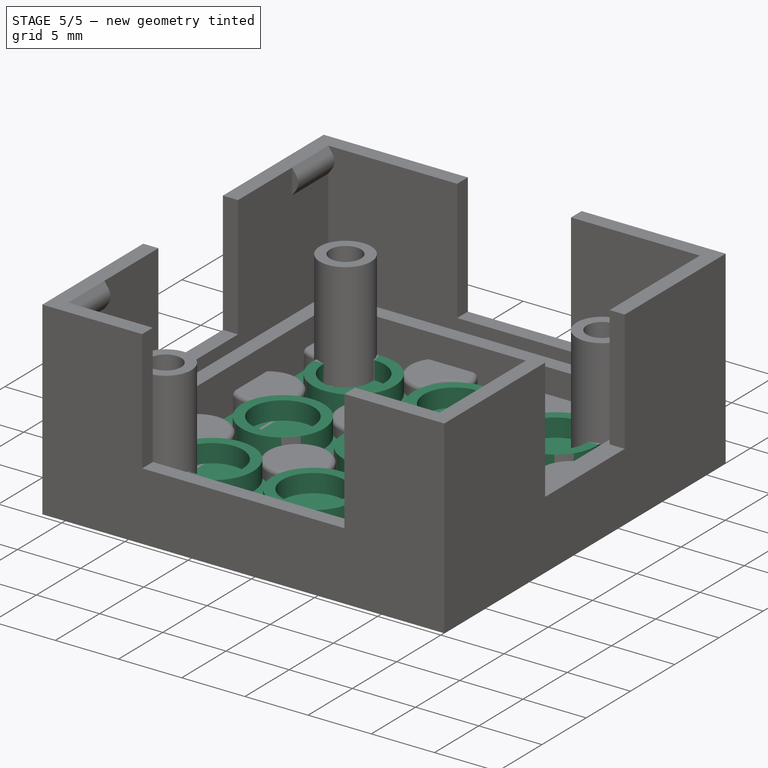
[diagram: stage 5 of 5 — iso view after this stage's code; geometry added in this stage tinted green]
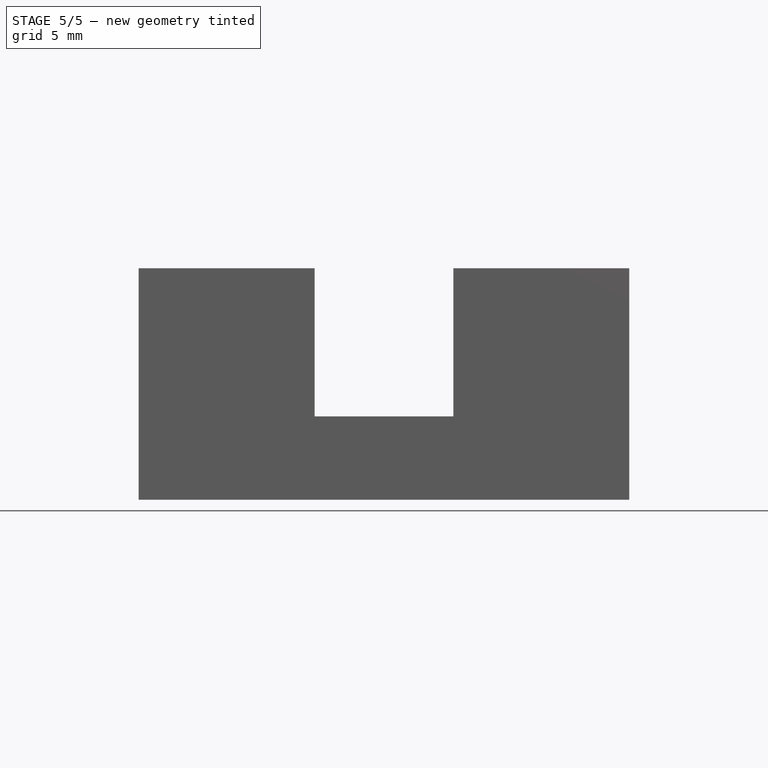
[diagram: stage 5 of 5 — front view after this stage's code; geometry added in this stage tinted green]
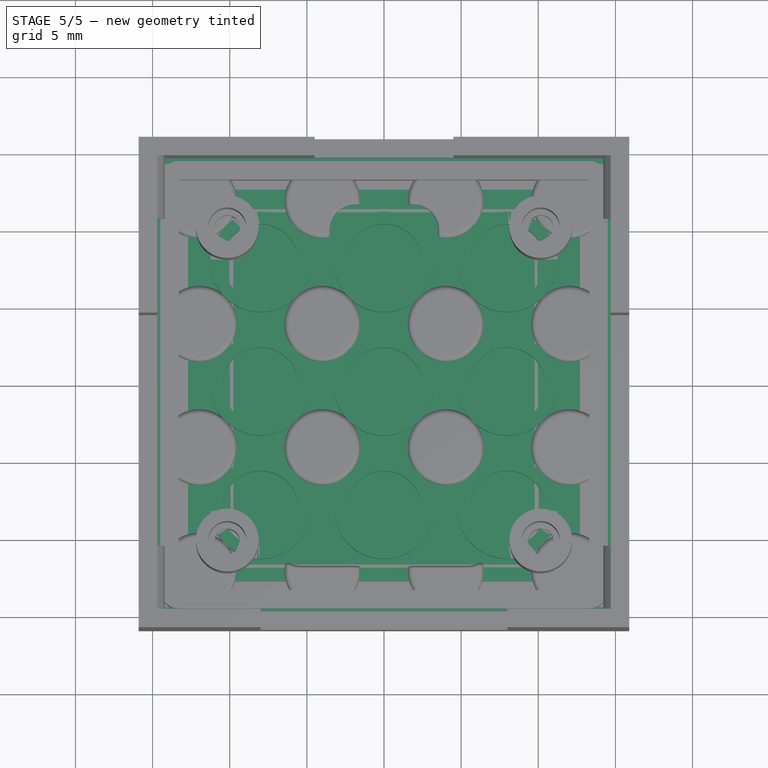
[diagram: stage 5 of 5 — top view after this stage's code; geometry added in this stage tinted green]
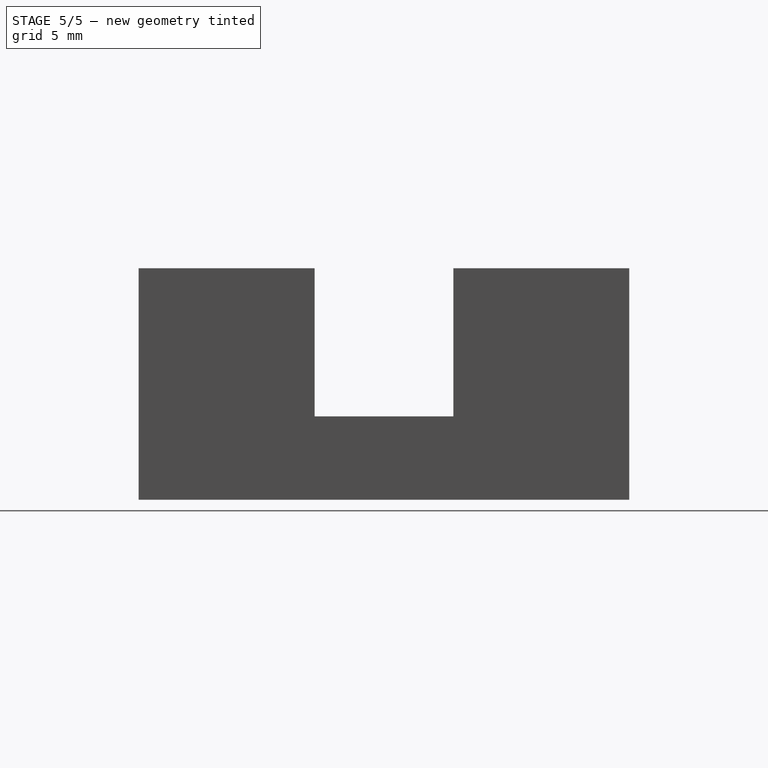
[diagram: stage 5 of 5 — right view after this stage's code; geometry added in this stage tinted green]
FEATURE [Part::Feature] Part__Feature001  label="Motor"
  Placement = pos=(0,-10,1.6) rot=(1,0,0;1.5708rad)
  shape: bbox 14.3 x 6.8 x 10.4 mm, 218 faces, 13 solids (baked)
FEATURE [Part::Feature] Part__Feature  label="Vin"
  Placement = pos=(0,10,1.6) rot=(0,0.707107,0.707107;3.14159rad)
  shape: bbox 7.3 x 6.8 x 10.4 mm, 122 faces, 7 solids (baked)
FEATURE [PartDesign::Mirrored] Mirrored007
  MirrorPlane = -> XZ_Plane001
FEATURE [Sketcher::SketchObject] Sketch006
  MapMode = 5
  Support = -> [XY_Plane001]
  sketch-geometry (4):
    g0: LineSegment StartX=-12.7 StartY=12.7 StartZ=0 EndX=12.7 EndY=12.7 EndZ=0
    g1: LineSegment StartX=12.7 StartY=12.7 StartZ=0 EndX=12.7 EndY=-12.7 EndZ=0
    g2: LineSegment StartX=12.7 StartY=-12.7 StartZ=0 EndX=-12.7 EndY=-12.7 EndZ=0
    g3: LineSegment StartX=-12.7 StartY=-12.7 StartZ=0 EndX=-12.7 EndY=12.7 EndZ=0
  constraints (11):
    c: Coincident(g0,g1)
    c: Coincident(g1,g2)
    c: Coincident(g2,g3)
    c: Coincident(g3,g0)
    c: Horizontal(g0)
    c: Horizontal(g2)
    c: Vertical(g1)
    c: Vertical(g3)
    c: Symmetric(g0,g2,g-1)
    c: DistanceX(g0,g0) = 25.4
    c: DistanceY(g1,g1) = 25.4
FEATURE [PartDesign::Pad] Pad005
  Length = 1.6
  Length2 = 100
  Profile = -> Sketch006
  Type = 0
FEATURE [Sketcher::SketchObject] Sketch005
  ExternalGeometry = -> [Pad005]
  MapMode = 5
  Placement = pos=(0,0,1.6) rot=(0,0,1;0rad)
  Support = -> [Pad005]
  expr: Constraints[2] = 0.07000000000000001in
  sketch-geometry (1):
    g0: Circle CenterX=-10.16 CenterY=10.16 CenterZ=0 NormalX=0 NormalY=0 NormalZ=1 AngleXU=0 Radius=1.778
  constraints (3):
    c: DistanceX(g-3,g0) = 2.54
    c: DistanceY(g0,g-3) = 2.54
    c: Radius(g0) = 1.778
FEATURE [PartDesign::Mirrored] Mirrored006
  MirrorPlane = -> Sketch005 [V_Axis]
FEATURE [PartDesign::Pocket] Pocket
  BaseFeature = -> Pad005
  Length = 5
  Length2 = 100
  Profile = -> Sketch005
  Type = 1
FEATURE [PartDesign::MultiTransform] MultiTransform002
  BaseFeature = -> Pocket
  Originals = -> [Pocket]
  Transformations = -> [Mirrored006,Mirrored007]
FEATURE [Sketcher::SketchObject] Sketch020
  MapMode = 5
  Placement = pos=(0,0,1) rot=(0,0,1;0rad)
  Support = -> [Pocket005]
  expr: Constraints[8] = 0.5in
  expr: Constraints[7] = 0.5in
  sketch-geometry (8):
    g0: ArcOfCircle CenterX=1e-16 CenterY=6.35 CenterZ=0 NormalX=0 NormalY=0 NormalZ=1 AngleXU=0 Radius=6.35 StartAngle=1e-16 EndAngle=3.14159
    g1: ArcOfCircle CenterX=1e-16 CenterY=-6.35 CenterZ=0 NormalX=0 NormalY=0 NormalZ=1 AngleXU=0 Radius=6.35 StartAngle=3.14159 EndAngle=6.28319
    g2: LineSegment [constr] StartX=-6.35 StartY=6.35 StartZ=0 EndX=-6.35 EndY=-6.35 EndZ=0
    g3: LineSegment [constr] StartX=6.35 StartY=6.35 StartZ=0 EndX=6.35 EndY=-6.35 EndZ=0
    g4: ArcOfCircle CenterX=6.35 CenterY=-3e-16 CenterZ=0 NormalX=0 NormalY=0 NormalZ=1 AngleXU=0 Radius=6.35 StartAngle=4.71239 EndAngle=7.85398
    g5: ArcOfCircle CenterX=-6.34999 CenterY=2.6117e-12 CenterZ=0 NormalX=0 NormalY=0 NormalZ=1 AngleXU=0 Radius=6.35 StartAngle=1.5708 EndAngle=4.71239
    g6: LineSegment [constr] StartX=-6.35 StartY=6.35 StartZ=0 EndX=6.35 EndY=6.35 EndZ=0
    g7: LineSegment [constr] StartX=-6.35 StartY=-6.35 StartZ=0 EndX=6.35 EndY=-6.35 EndZ=0
  constraints (22):
    c: Tangent(g0,g3) = 1.5708
    c: Tangent(g0,g2) = -1.5708
    c: Tangent(g2,g1) = -1.5708
    c: Tangent(g3,g1) = 1.5708
    c: Vertical(g2)
    c: Equal(g0,g1)
    c: Symmetric(g0,g1,g-1)
    c: DistanceX(g0,g0) = 12.7
    c: DistanceY(g3,g3) = 12.7
    c: Tangent(g4,g6)
    c: Tangent(g5,g6)
    c: Tangent(g5,g7)
    c: Tangent(g4,g7)
    c: Coincident(g1,g4)
    c: Coincident(g1,g7)
    c: Coincident(g0,g5)
    c: Coincident(g0,g6)
    c: Coincident(g0,g4)
    c: Coincident(g0,g6)
    c: Coincident(g1,g2)
    c: Coincident(g1,g5)
    c: Coincident(g1,g7)
FEATURE [Sketcher::SketchObject] Sketch021
  MapMode = 5
  Support = -> [XY_Plane006]
  expr: Constraints[9] = 31.8
  sketch-geometry (4):
    g0: LineSegment StartX=-15.9 StartY=15.9 StartZ=0 EndX=15.9 EndY=15.9 EndZ=0
    g1: LineSegment StartX=15.9 StartY=15.9 StartZ=0 EndX=15.9 EndY=-15.9 EndZ=0
    g2: LineSegment StartX=15.9 StartY=-15.9 StartZ=0 EndX=-15.9 EndY=-15.9 EndZ=0
    g3: LineSegment StartX=-15.9 StartY=-15.9 StartZ=0 EndX=-15.9 EndY=15.9 EndZ=0
  constraints (11):
    c: Coincident(g0,g1)
    c: Coincident(g1,g2)
    c: Coincident(g2,g3)
    c: Coincident(g3,g0)
    c: Horizontal(g0)
    c: Horizontal(g2)
    c: Vertical(g1)
    c: Vertical(g3)
    c: Symmetric(g2,g0,g-1)
    c: DistanceX(g0,g0) = 31.8
    c: DistanceY(g1,g1) = 31.8
FEATURE [PartDesign::Pad] Pad014  label="Platte003"
  Length = 3.05
  Length2 = 100
  Profile = -> Sketch021
  Type = 0
  expr: Length = val.base_height - 0.15mm
FEATURE [Sketcher::SketchObject] Sketch022
  ExternalGeometry = -> [Pad014]
  MapMode = 5
  Placement = pos=(0,0,3.05) rot=(0,0,1;0rad)
  Support = -> [Pad014]
  expr: Constraints[9] = val.wall_thick
  expr: Constraints[10] = val.wall_thick
  sketch-geometry (4):
    g0: LineSegment StartX=-14.4 StartY=14.4 StartZ=0 EndX=14.4 EndY=14.4 EndZ=0
    g1: LineSegment StartX=14.4 StartY=14.4 StartZ=0 EndX=14.4 EndY=-14.4 EndZ=0
    g2: LineSegment StartX=14.4 StartY=-14.4 StartZ=0 EndX=-14.4 EndY=-14.4 EndZ=0
    g3: LineSegment StartX=-14.4 StartY=-14.4 StartZ=0 EndX=-14.4 EndY=14.4 EndZ=0
  constraints (11):
    c: Coincident(g0,g1)
    c: Coincident(g1,g2)
    c: Coincident(g2,g3)
    c: Coincident(g3,g0)
    c: Horizontal(g0)
    c: Horizontal(g2)
    c: Vertical(g1)
    c: Vertical(g3)
    c: Symmetric(g2,g0,g-1)
    c: DistanceX(g-3,g0) = 1.5
    c: DistanceY(g0,g-3) = 1.5
FEATURE [PartDesign::Pocket] Pocket008
  BaseFeature = -> Pad014
  Length = 2.2
  Length2 = 100
  Profile = -> Sketch022
  Type = 0
  expr: Length = val.pocket_depth
FEATURE [Sketcher::SketchObject] Sketch023
  MapMode = 5
  Placement = pos=(0,0,0.85) rot=(0,0,1;0rad)
  Support = -> [Pocket008]
  expr: Constraints[3] = val.tube_inner_dia / 2
  expr: Constraints[0] = val.tube_outer_dia / 2
  sketch-geometry (2):
    g0: Circle CenterX=8 CenterY=8 CenterZ=0 NormalX=0 NormalY=0 NormalZ=1 AngleXU=0 Radius=3.25
    g1: Circle CenterX=8 CenterY=8 CenterZ=0 NormalX=0 NormalY=0 NormalZ=1 AngleXU=0 Radius=2.45
  constraints (5):
    c: Radius(g0) = 3.25
    c: DistanceX(g0) = 8
    c: DistanceY(g0) = 8
    c: Radius(g1) = 2.45
    c: Coincident(g0,g1)
FEATURE [PartDesign::Pad] Pad015  label="Tube"
  BaseFeature = -> Pocket008
  Length = 2.2
  Length2 = 100
  Profile = -> Sketch023
  Type = 0
  expr: Length = val.pocket_depth
FEATURE [PartDesign::LinearPattern] LinearPattern002
  Direction = -> Sketch023 [H_Axis]
  Length = 16
  Occurrences = 3
  Reversed = true
FEATURE [PartDesign::LinearPattern] LinearPattern003
  Direction = -> Sketch023 [V_Axis]
  Length = 16
  Occurrences = 3
  Reversed = true
FEATURE [PartDesign::MultiTransform] MultiTransform010
  BaseFeature = -> Pad015
  Originals = -> [Pad015]
  Transformations = -> [LinearPattern002,LinearPattern003]
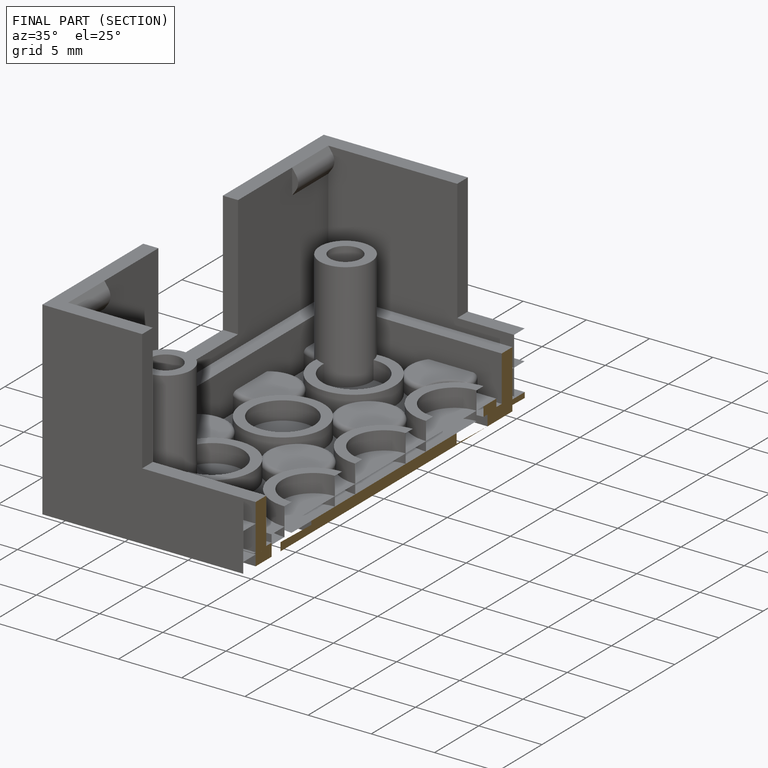
[diagram: finished part — half-section view (interior)]
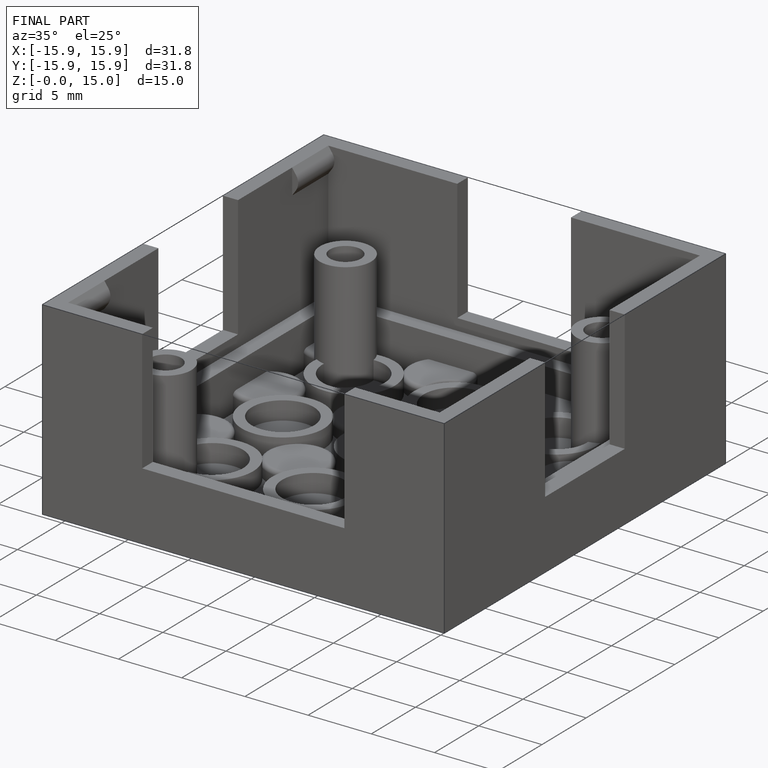
[diagram: finished part — iso view with bounding-box wireframe]
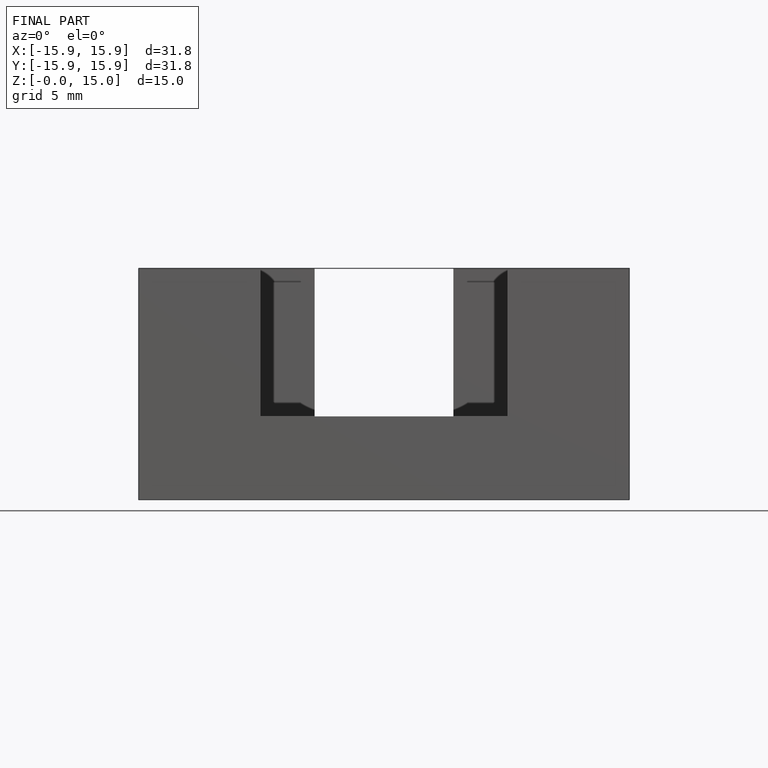
[diagram: finished part — front view with bounding-box wireframe]
